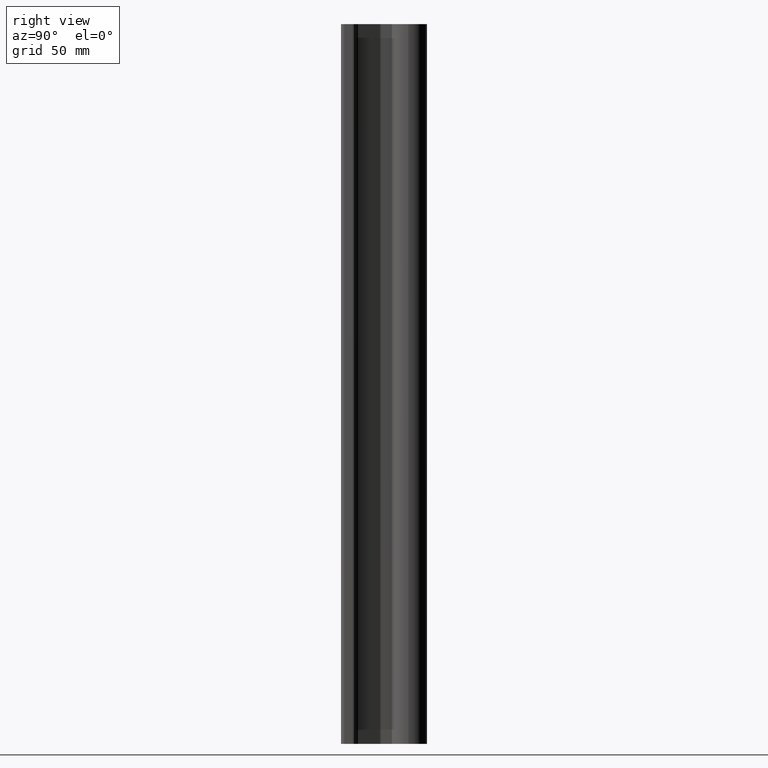
[diagram: clean part render]
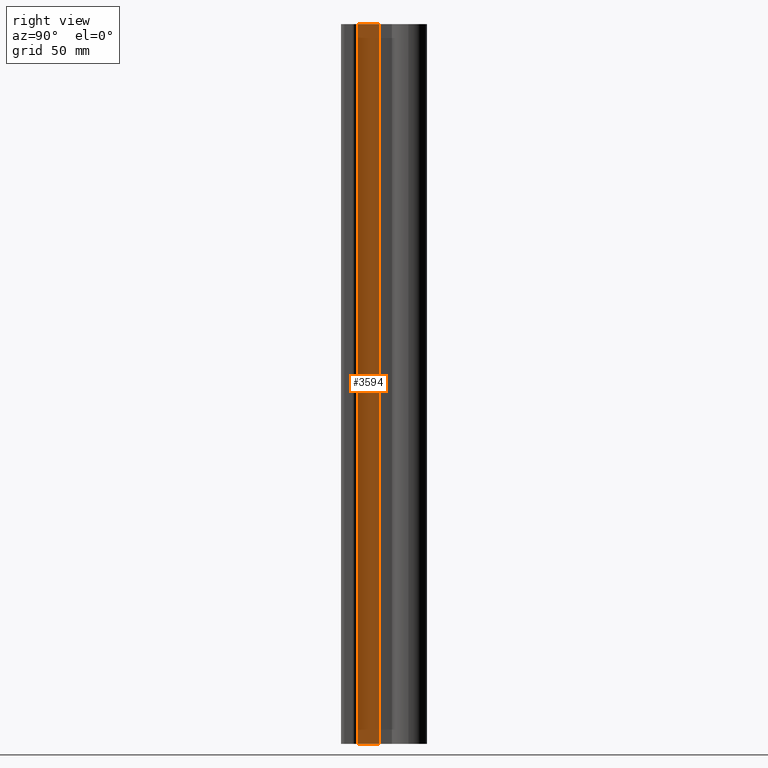
[diagram: same view with one face highlighted and labeled with its STEP entity id]
A machine part, right view. The second image highlights one B-rep face of the part: STEP entity #3594.
In plain terms, the highlighted planar face has unit normal (0.9063, 0.4226, 0).
Its self-contained STEP definition (entity closure, byte-faithful):
#342 = CARTESIAN_POINT ( 'NONE',  ( 0.3302890422999967268, 0.2860863586999988772, -13.83356500330709338 ) ) ;
#385 = ORIENTED_EDGE ( 'NONE', *, *, #3457, .F. ) ;
#548 = CARTESIAN_POINT ( 'NONE',  ( 0.3302890422999967268, 0.2860863586999988772, -12.00000000000000178 ) ) ;
#697 = DIRECTION ( 'NONE',  ( -0.4226182618653278045, 0.9063077869785348684, 0.000000000000000000 ) ) ;
#732 = EDGE_CURVE ( 'NONE', #5280, #1559, #5474, .T. ) ;
#884 = DIRECTION ( 'NONE',  ( 0.000000000000000000, 0.000000000000000000, 1.000000000000000000 ) ) ;
#1374 = CARTESIAN_POINT ( 'NONE',  ( 0.1621057632999977349, 0.6467565642999993925, -12.00000000000000178 ) ) ;
#1559 = VERTEX_POINT ( 'NONE', #5294 ) ;
#1651 = VECTOR ( 'NONE', #1751, 39.37007874015748143 ) ;
#1751 = DIRECTION ( 'NONE',  ( 0.000000000000000000, 0.000000000000000000, 1.000000000000000000 ) ) ;
#1831 = AXIS2_PLACEMENT_3D ( 'NONE', #2607, #3672, #697 ) ;
#1984 = VERTEX_POINT ( 'NONE', #4439 ) ;
#2053 = ORIENTED_EDGE ( 'NONE', *, *, #6286, .F. ) ;
#2444 = PLANE ( 'NONE',  #1831 ) ;
#2607 = CARTESIAN_POINT ( 'NONE',  ( 0.3302890422999968378, 0.2860863586999988217, -13.83356500330709338 ) ) ;
#2715 = DIRECTION ( 'NONE',  ( -0.4226182618653278045, 0.9063077869785348684, 0.000000000000000000 ) ) ;
#2750 = VERTEX_POINT ( 'NONE', #548 ) ;
#2756 = LINE ( 'NONE', #3385, #6553 ) ;
#3007 = ORIENTED_EDGE ( 'NONE', *, *, #732, .T. ) ;
#3385 = CARTESIAN_POINT ( 'NONE',  ( 0.3302890422999968378, 0.2860863586999988217, 0.000000000000000000 ) ) ;
#3420 = VECTOR ( 'NONE', #884, 39.37007874015748143 ) ;
#3457 = EDGE_CURVE ( 'NONE', #2750, #1984, #3909, .T. ) ;
#3594 = ADVANCED_FACE ( 'NONE', ( #3636 ), #2444, .T. ) ;
#3636 = FACE_OUTER_BOUND ( 'NONE', #5262, .T. ) ;
#3672 = DIRECTION ( 'NONE',  ( 0.9063077869785348684, 0.4226182618653278045, -0.000000000000000000 ) ) ;
#3909 = LINE ( 'NONE', #342, #3420 ) ;
#4394 = DIRECTION ( 'NONE',  ( 0.4226182618653276934, -0.9063077869785348684, 0.000000000000000000 ) ) ;
#4439 = CARTESIAN_POINT ( 'NONE',  ( 0.3302890422999967268, 0.2860863586999988772, 0.000000000000000000 ) ) ;
#4681 = EDGE_CURVE ( 'NONE', #1984, #1559, #2756, .T. ) ;
#4716 = CARTESIAN_POINT ( 'NONE',  ( 0.1621057632999977627, 0.6467565642999993925, -13.83356500330709338 ) ) ;
#5007 = CARTESIAN_POINT ( 'NONE',  ( 0.3302890422999968378, 0.2860863586999988217, -12.00000000000000178 ) ) ;
#5262 = EDGE_LOOP ( 'NONE', ( #2053, #3007, #7736, #385 ) ) ;
#5280 = VERTEX_POINT ( 'NONE', #1374 ) ;
#5294 = CARTESIAN_POINT ( 'NONE',  ( 0.1621057632999977349, 0.6467565642999993925, 0.000000000000000000 ) ) ;
#5474 = LINE ( 'NONE', #4716, #1651 ) ;
#6286 = EDGE_CURVE ( 'NONE', #5280, #2750, #6657, .T. ) ;
#6396 = VECTOR ( 'NONE', #4394, 39.37007874015748143 ) ;
#6553 = VECTOR ( 'NONE', #2715, 39.37007874015748143 ) ;
#6657 = LINE ( 'NONE', #5007, #6396 ) ;
#7736 = ORIENTED_EDGE ( 'NONE', *, *, #4681, .F. ) ;